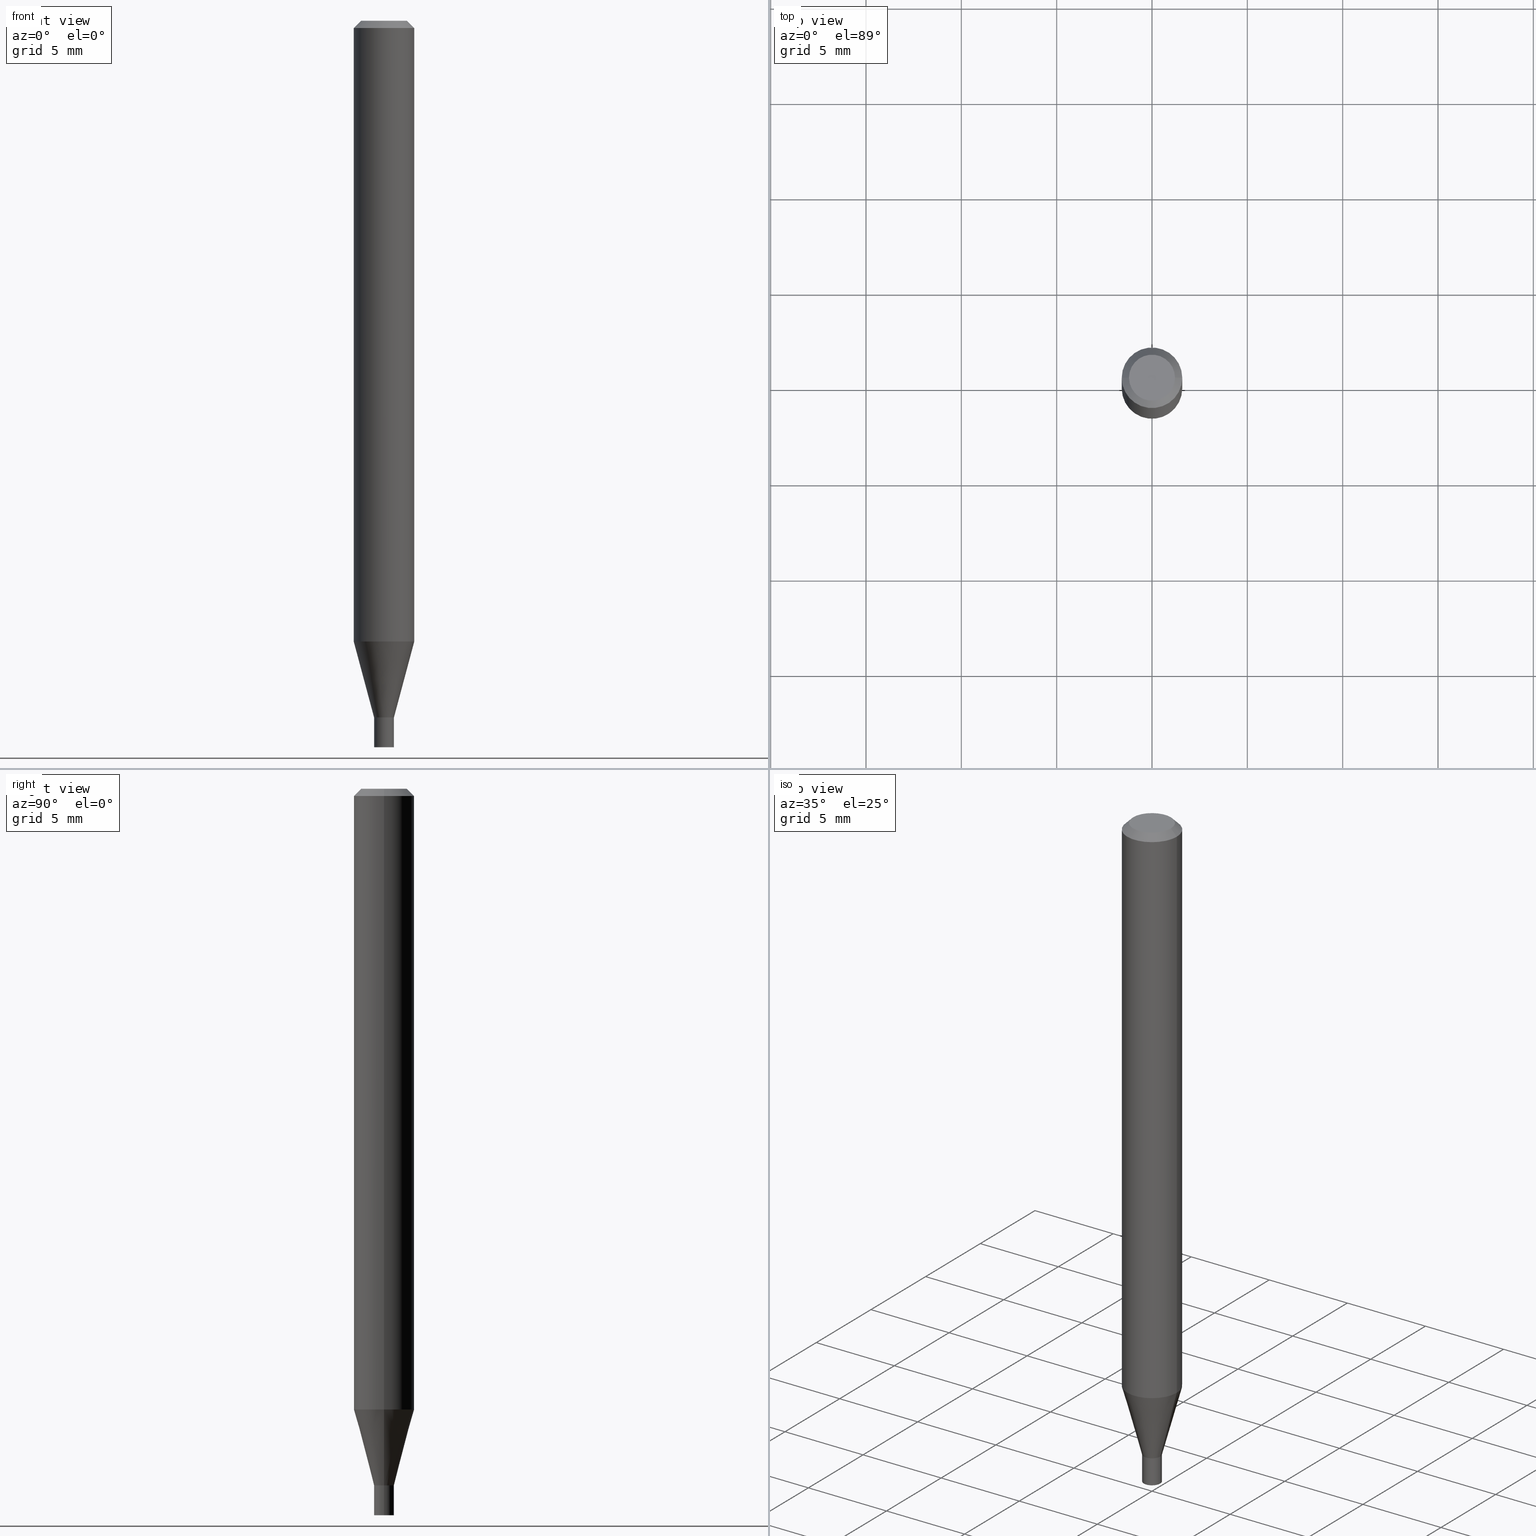
[diagram: canonical four-view strip — front | top / right | iso, engineering-drawing reading convention]
A machine part, canonical four-view strip (front | top / right | iso — engineering-drawing reading convention). The complete STEP part file that produces these views, byte-faithful:
ISO-10303-21;
HEADER;
FILE_DESCRIPTION (( 'STEP AP203' ),
    '1' );
FILE_NAME ('04076.STEP',
    '2024-03-14T16:57:18',
    ( '' ),
    ( '' ),
    'SwSTEP 2.0',
    'SolidWorks 2023',
    '' );
FILE_SCHEMA (( 'CONFIG_CONTROL_DESIGN' ));
ENDSEC;

DATA;
#1 = DIRECTION ( 'NONE',  ( 0.000000000000000000, 0.000000000000000000, 1.000000000000000000 ) ) ;
#2 = CYLINDRICAL_SURFACE ( 'NONE', #452, 0.02049999999999965045 ) ;
#3 = CARTESIAN_POINT ( 'NONE',  ( -3.223020679335594837E-45, 4.601619341103081537E-31, 1.317956160873471783E-16 ) ) ;
#4 = CYLINDRICAL_SURFACE ( 'NONE', #394, 0.02050000000000000086 ) ;
#5 = EDGE_CURVE ( 'NONE', #164, #210, #285, .T. ) ;
#6 = DIRECTION ( 'NONE',  ( 1.000000000000000000, -6.982962677686266711E-15, 4.876176775795935793E-29 ) ) ;
#7 = CARTESIAN_POINT ( 'NONE',  ( 0.06250000000000000000, -4.888073874380388472E-16, -0.01499999999999999944 ) ) ;
#8 = CARTESIAN_POINT ( 'NONE',  ( -0.02049999999999965045, -4.876834645095047443E-15, -1.438500000000000334 ) ) ;
#9 = AXIS2_PLACEMENT_3D ( 'NONE', #202, #138, #240 ) ;
#10 = EDGE_CURVE ( 'NONE', #197, #375, #59, .T. ) ;
#11 = SECURITY_CLASSIFICATION ( '', '', #117 ) ;
#12 = DIRECTION ( 'NONE',  ( -1.000000000000000000, 6.982962677686265922E-15, -4.876176775795935793E-29 ) ) ;
#13 = CARTESIAN_POINT ( 'NONE',  ( 0.000000000000000000, 0.000000000000000000, 0.000000000000000000 ) ) ;
#14 = VECTOR ( 'NONE', #216, 39.37007874015748143 ) ;
#15 = DIRECTION ( 'NONE',  ( 0.7071067811865444641, -7.319954787623245001E-15, -0.7071067811865505703 ) ) ;
#16 = DIRECTION ( 'NONE',  ( 1.000000000000000000, -6.982962677686267499E-15, 4.876176775795935232E-29 ) ) ;
#17 = ORIENTED_EDGE ( 'NONE', *, *, #325, .F. ) ;
#18 = VERTEX_POINT ( 'NONE', #46 ) ;
#19 = AXIS2_PLACEMENT_3D ( 'NONE', #243, #343, #238 ) ;
#20 = ORIENTED_EDGE ( 'NONE', *, *, #409, .F. ) ;
#21 = EDGE_CURVE ( 'NONE', #102, #25, #95, .T. ) ;
#22 = PLANE ( 'NONE',  #19 ) ;
#23 = ORIENTED_EDGE ( 'NONE', *, *, #368, .F. ) ;
#24 = CALENDAR_DATE ( 2024, 14, 3 ) ;
#25 = VERTEX_POINT ( 'NONE', #353 ) ;
#26 = EDGE_CURVE ( 'NONE', #91, #418, #356, .T. ) ;
#27 = EDGE_CURVE ( 'NONE', #45, #107, #111, .T. ) ;
#28 = FACE_OUTER_BOUND ( 'NONE', #337, .T. ) ;
#29 = EDGE_LOOP ( 'NONE', ( #313, #372, #421, #183 ) ) ;
#30 = PERSON_AND_ORGANIZATION ( #155, #385 ) ;
#31 = CARTESIAN_POINT ( 'NONE',  ( 3.134489096710992229E-29, -4.475219704415731184E-15, -1.281753866082106397 ) ) ;
#32 = MECHANICAL_CONTEXT ( 'NONE', #54, 'mechanical' ) ;
#33 = APPROVAL_STATUS ( 'not_yet_approved' ) ;
#34 = CARTESIAN_POINT ( 'NONE',  ( 3.517806877697320021E-29, -5.022495905925865349E-15, -1.438500000000000334 ) ) ;
#35 = AXIS2_PLACEMENT_3D ( 'NONE', #125, #441, #118 ) ;
#36 = AXIS2_PLACEMENT_3D ( 'NONE', #369, #266, #300 ) ;
#37 = APPROVAL_PERSON_ORGANIZATION ( #322, #412, #152 ) ;
#38 = EDGE_CURVE ( 'NONE', #107, #278, #232, .T. ) ;
#39 = CARTESIAN_POINT ( 'NONE',  ( -0.02049999999999965045, -4.875088904425625939E-15, -1.438000000000000389 ) ) ;
#40 = DIRECTION ( 'NONE',  ( 1.000000000000000000, -6.982962677686284065E-15, 0.000000000000000000 ) ) ;
#41 = DIRECTION ( 'NONE',  ( 1.000000000000000000, -6.982962677686266711E-15, 4.876176775795935793E-29 ) ) ;
#42 = CYLINDRICAL_SURFACE ( 'NONE', #136, 0.06250000000000000000 ) ;
#43 = CC_DESIGN_PERSON_AND_ORGANIZATION_ASSIGNMENT ( #114, #185, ( #191 ) ) ;
#44 = DIRECTION ( 'NONE',  ( 1.000000000000000000, -6.982962677686266711E-15, 0.000000000000000000 ) ) ;
#45 = VERTEX_POINT ( 'NONE', #426 ) ;
#46 = CARTESIAN_POINT ( 'NONE',  ( -0.06250000000000000000, -1.819706752399126713E-15, -0.01499999999999999944 ) ) ;
#47 = LINE ( 'NONE', #8, #190 ) ;
#48 = AXIS2_PLACEMENT_3D ( 'NONE', #83, #261, #194 ) ;
#49 = CARTESIAN_POINT ( 'NONE',  ( 3.516584143294227220E-29, -5.020750165256443846E-15, -1.438000000000000389 ) ) ;
#50 = ORIENTED_EDGE ( 'NONE', *, *, #81, .F. ) ;
#51 = DIRECTION ( 'NONE',  ( 1.000000000000000000, -6.982962677686286432E-15, 0.000000000000000000 ) ) ;
#52 = DIMENSIONAL_EXPONENTS ( 1.000000000000000000, 0.000000000000000000, 0.000000000000000000, 0.000000000000000000, 0.000000000000000000, 0.000000000000000000, 0.000000000000000000 ) ;
#53 = EDGE_LOOP ( 'NONE', ( #63, #423, #56, #275 ) ) ;
#54 = APPLICATION_CONTEXT ( 'configuration controlled 3d designs of mechanical parts and assemblies' ) ;
#55 = PLANE ( 'NONE',  #161 ) ;
#56 = ORIENTED_EDGE ( 'NONE', *, *, #154, .F. ) ;
#57 = DIRECTION ( 'NONE',  ( -1.000000000000000000, 6.982962677686266711E-15, 0.000000000000000000 ) ) ;
#58 = VERTEX_POINT ( 'NONE', #362 ) ;
#59 = CIRCLE ( 'NONE', #458, 0.02050000000000000086 ) ;
#60 = CONICAL_SURFACE ( 'NONE', #323, 0.02000000000000000042, 0.7853981633974739252 ) ;
#61 = CC_DESIGN_APPROVAL ( #156, ( #11 ) ) ;
#62 = FACE_OUTER_BOUND ( 'NONE', #273, .T. ) ;
#63 = ORIENTED_EDGE ( 'NONE', *, *, #315, .T. ) ;
#64 = APPROVAL_ROLE ( '' ) ;
#65 = DIRECTION ( 'NONE',  ( -2.445468806185136597E-29, 3.491481338843145583E-15, 1.000000000000000000 ) ) ;
#66 = ORIENTED_EDGE ( 'NONE', *, *, #327, .F. ) ;
#67 = PRODUCT_RELATED_PRODUCT_CATEGORY ( 'detail', '', ( #221 ) ) ;
#68 = CARTESIAN_POINT ( 'NONE',  ( -0.02050000000000000086, -4.984197696264471884E-15, -1.500000000000000222 ) ) ;
#69 = PERSON_AND_ORGANIZATION ( #155, #385 ) ;
#70 = EDGE_LOOP ( 'NONE', ( #279, #354 ) ) ;
#71 = CARTESIAN_POINT ( 'NONE',  ( -0.02050000000000000086, -4.984197696264471884E-15, -1.438500000000000334 ) ) ;
#72 = DATE_TIME_ROLE ( 'creation_date' ) ;
#73 = CARTESIAN_POINT ( 'NONE',  ( 3.517806877697320021E-29, -5.022495905925865349E-15, -1.438500000000000334 ) ) ;
#74 = VECTOR ( 'NONE', #200, 39.37007874015748143 ) ;
#75 = PERSON_AND_ORGANIZATION_ROLE ( 'design_supplier' ) ;
#76 = DIRECTION ( 'NONE',  ( 1.000000000000000000, -6.982962677686261977E-15, 0.000000000000000000 ) ) ;
#77 = PERSON_AND_ORGANIZATION ( #155, #385 ) ;
#78 = CARTESIAN_POINT ( 'NONE',  ( 0.04749999999999999362, -4.035134999187576158E-16, 1.317956160873497667E-16 ) ) ;
#79 = VECTOR ( 'NONE', #153, 39.37007874015748143 ) ;
#80 = DIRECTION ( 'NONE',  ( -2.445468806185136597E-29, 3.491481338843145583E-15, 1.000000000000000000 ) ) ;
#81 = EDGE_CURVE ( 'NONE', #349, #164, #130, .T. ) ;
#82 = DIRECTION ( 'NONE',  ( -2.445468806185136597E-29, 3.491481338843145583E-15, 1.000000000000000000 ) ) ;
#83 = CARTESIAN_POINT ( 'NONE',  ( 3.134489096710992229E-29, -4.475219704415731184E-15, -1.281753866082106397 ) ) ;
#84 = DIRECTION ( 'NONE',  ( 1.000000000000000000, -6.982962677686286432E-15, 0.000000000000000000 ) ) ;
#85 = FACE_OUTER_BOUND ( 'NONE', #70, .T. ) ;
#86 = ORIENTED_EDGE ( 'NONE', *, *, #93, .T. ) ;
#87 = DIRECTION ( 'NONE',  ( -2.445468806185136597E-29, 3.491481338843145583E-15, 1.000000000000000000 ) ) ;
#88 = AXIS2_PLACEMENT_3D ( 'NONE', #410, #274, #51 ) ;
#89 =( GEOMETRIC_REPRESENTATION_CONTEXT ( 3 ) GLOBAL_UNCERTAINTY_ASSIGNED_CONTEXT ( ( #359 ) ) GLOBAL_UNIT_ASSIGNED_CONTEXT ( ( #144, #317, #396 ) ) REPRESENTATION_CONTEXT ( 'NONE', 'WORKASPACE' ) );
#90 = LINE ( 'NONE', #189, #79 ) ;
#91 = VERTEX_POINT ( 'NONE', #173 ) ;
#92 = LINE ( 'NONE', #341, #233 ) ;
#93 = EDGE_CURVE ( 'NONE', #25, #107, #387, .T. ) ;
#94 = ADVANCED_FACE ( 'NONE', ( #85 ), #163, .F. ) ;
#95 = CIRCLE ( 'NONE', #321, 0.02000000000000000042 ) ;
#96 = CIRCLE ( 'NONE', #9, 0.02000000000000000042 ) ;
#97 = CARTESIAN_POINT ( 'NONE',  ( 0.000000000000000000, 0.000000000000000000, 0.000000000000000000 ) ) ;
#98 = ORIENTED_EDGE ( 'NONE', *, *, #235, .T. ) ;
#99 = APPLICATION_CONTEXT ( 'configuration controlled 3d designs of mechanical parts and assemblies' ) ;
#100 = DIRECTION ( 'NONE',  ( -1.000000000000000000, 6.982962677686266711E-15, 0.000000000000000000 ) ) ;
#101 = ORIENTED_EDGE ( 'NONE', *, *, #462, .T. ) ;
#102 = VERTEX_POINT ( 'NONE', #193 ) ;
#103 = CARTESIAN_POINT ( 'NONE',  ( 3.517806877697319461E-29, -5.022495905925864560E-15, -1.438499999999999890 ) ) ;
#104 = ADVANCED_FACE ( 'NONE', ( #162 ), #182, .T. ) ;
#105 = VECTOR ( 'NONE', #446, 39.37007874015747433 ) ;
#106 = DIRECTION ( 'NONE',  ( -2.445468806185136597E-29, 3.491481338843145583E-15, 1.000000000000000000 ) ) ;
#107 = VERTEX_POINT ( 'NONE', #39 ) ;
#108 = PERSON_AND_ORGANIZATION_ROLE ( 'creator' ) ;
#109 = ORIENTED_EDGE ( 'NONE', *, *, #10, .F. ) ;
#110 = CYLINDRICAL_SURFACE ( 'NONE', #165, 0.06250000000000000000 ) ;
#111 = LINE ( 'NONE', #246, #314 ) ;
#112 = DIRECTION ( 'NONE',  ( -2.445468806185136597E-29, 3.491481338843145583E-15, 1.000000000000000000 ) ) ;
#113 = CARTESIAN_POINT ( 'NONE',  ( -0.06250000000000000000, 3.840629472727444916E-16, -0.01499999999999999944 ) ) ;
#114 = PERSON_AND_ORGANIZATION ( #155, #385 ) ;
#115 = APPROVAL_STATUS ( 'not_yet_approved' ) ;
#116 = DIRECTION ( 'NONE',  ( -2.445468806185136597E-29, 3.491481338843145583E-15, 1.000000000000000000 ) ) ;
#117 = SECURITY_CLASSIFICATION_LEVEL ( 'unclassified' ) ;
#118 = DIRECTION ( 'NONE',  ( -1.000000000000000000, 6.982962677686265922E-15, -4.876176775795935793E-29 ) ) ;
#119 = CARTESIAN_POINT ( 'NONE',  ( 3.668203209277704895E-29, -5.237222008264718177E-15, -1.500000000000000222 ) ) ;
#120 = CARTESIAN_POINT ( 'NONE',  ( 3.316907271900976096E-16, 0.04749999999999999362, -9.994755555137580731E-17 ) ) ;
#121 = CC_DESIGN_DATE_AND_TIME_ASSIGNMENT ( #391, #72, ( #281 ) ) ;
#122 = ADVANCED_FACE ( 'NONE', ( #436 ), #264, .F. ) ;
#123 = CIRCLE ( 'NONE', #141, 0.02050000000000000086 ) ;
#124 = CYLINDRICAL_SURFACE ( 'NONE', #345, 0.02049999999999965045 ) ;
#125 = CARTESIAN_POINT ( 'NONE',  ( 1.431507348926036478E-16, 0.02049999999999497710, -1.438500000000000334 ) ) ;
#126 = CARTESIAN_POINT ( 'NONE',  ( 0.000000000000000000, 0.000000000000000000, 0.000000000000000000 ) ) ;
#127 = LINE ( 'NONE', #295, #255 ) ;
#128 = CARTESIAN_POINT ( 'NONE',  ( 0.06250000000000000000, -4.911654871771122854E-15, -1.281753866082106397 ) ) ;
#129 = VERTEX_POINT ( 'NONE', #228 ) ;
#130 = CIRCLE ( 'NONE', #382, 0.06250000000000000000 ) ;
#131 = CARTESIAN_POINT ( 'NONE',  ( -3.223020679335594837E-45, 4.601619341103081537E-31, 1.317956160873471783E-16 ) ) ;
#132 = CARTESIAN_POINT ( 'NONE',  ( 0.02049999999999965045, -5.165646640818431797E-15, -1.438500000000000334 ) ) ;
#133 = CC_DESIGN_PERSON_AND_ORGANIZATION_ASSIGNMENT ( #254, #75, ( #191 ) ) ;
#134 = ORIENTED_EDGE ( 'NONE', *, *, #462, .F. ) ;
#135 = EDGE_CURVE ( 'NONE', #278, #107, #316, .T. ) ;
#136 = AXIS2_PLACEMENT_3D ( 'NONE', #13, #87, #6 ) ;
#137 = ORIENTED_EDGE ( 'NONE', *, *, #21, .F. ) ;
#138 = DIRECTION ( 'NONE',  ( -2.445468806185136597E-29, 3.491481338843145583E-15, 1.000000000000000000 ) ) ;
#139 = ORIENTED_EDGE ( 'NONE', *, *, #179, .T. ) ;
#140 = EDGE_LOOP ( 'NONE', ( #388, #444, #139, #379 ) ) ;
#141 = AXIS2_PLACEMENT_3D ( 'NONE', #119, #363, #76 ) ;
#142 = EDGE_LOOP ( 'NONE', ( #310, #201 ) ) ;
#143 = EDGE_CURVE ( 'NONE', #91, #197, #299, .T. ) ;
#144 =( CONVERSION_BASED_UNIT ( 'INCH', #253 ) LENGTH_UNIT ( ) NAMED_UNIT ( #52 ) );
#145 = COORDINATED_UNIVERSAL_TIME_OFFSET ( 5, 0, .BEHIND. ) ;
#146 = ORIENTED_EDGE ( 'NONE', *, *, #5, .T. ) ;
#147 = DIRECTION ( 'NONE',  ( 1.000000000000000000, -6.982962677686284065E-15, 0.000000000000000000 ) ) ;
#148 = DIRECTION ( 'NONE',  ( -2.445468806185136597E-29, 3.491481338843145583E-15, 1.000000000000000000 ) ) ;
#149 = COORDINATED_UNIVERSAL_TIME_OFFSET ( 5, 0, .BEHIND. ) ;
#150 = AXIS2_PLACEMENT_3D ( 'NONE', #198, #234, #40 ) ;
#151 = AXIS2_PLACEMENT_3D ( 'NONE', #365, #1, #291 ) ;
#152 = APPROVAL_ROLE ( '' ) ;
#153 = DIRECTION ( 'NONE',  ( -2.445468806185136877E-29, 3.491481338843145188E-15, 1.000000000000000000 ) ) ;
#154 = EDGE_CURVE ( 'NONE', #164, #349, #431, .T. ) ;
#155 = PERSON ( 'UNSPECIFIED', 'UNSPECIFIED', 'UNSPECIFIED', ('UNSPECIFIED'), ('UNSPECIFIED'), ('UNSPECIFIED') ) ;
#156 = APPROVAL ( #218, 'UNSPECIFIED' ) ;
#157 = DIRECTION ( 'NONE',  ( -2.445468806185136877E-29, 3.491481338843145188E-15, 1.000000000000000000 ) ) ;
#158 = LINE ( 'NONE', #298, #74 ) ;
#159 = FACE_OUTER_BOUND ( 'NONE', #247, .T. ) ;
#160 = AXIS2_PLACEMENT_3D ( 'NONE', #258, #65, #284 ) ;
#161 = AXIS2_PLACEMENT_3D ( 'NONE', #236, #170, #419 ) ;
#162 = FACE_OUTER_BOUND ( 'NONE', #53, .T. ) ;
#163 = PLANE ( 'NONE',  #35 ) ;
#164 = VERTEX_POINT ( 'NONE', #128 ) ;
#165 = AXIS2_PLACEMENT_3D ( 'NONE', #358, #116, #361 ) ;
#166 = ADVANCED_FACE ( 'NONE', ( #199 ), #2, .F. ) ;
#167 = DIRECTION ( 'NONE',  ( 2.445468806185136597E-29, -3.491481338843145583E-15, -1.000000000000000000 ) ) ;
#168 = ORIENTED_EDGE ( 'NONE', *, *, #205, .T. ) ;
#169 = AXIS2_PLACEMENT_3D ( 'NONE', #49, #301, #326 ) ;
#170 = DIRECTION ( 'NONE',  ( -2.438088387897960049E-29, 3.491481338843145188E-15, 1.000000000000000000 ) ) ;
#171 = EDGE_LOOP ( 'NONE', ( #383, #342, #212, #50 ) ) ;
#172 = ADVANCED_BREP_SHAPE_REPRESENTATION ( '04076', ( #447, #293, #151 ), #89 ) ;
#173 = CARTESIAN_POINT ( 'NONE',  ( 0.02050000000000000086, -5.380372743157286991E-15, -1.500000000000000222 ) ) ;
#174 = ADVANCED_FACE ( 'NONE', ( #402 ), #4, .T. ) ;
#175 = ORIENTED_EDGE ( 'NONE', *, *, #205, .F. ) ;
#176 = PERSON_AND_ORGANIZATION ( #155, #385 ) ;
#177 = CARTESIAN_POINT ( 'NONE',  ( -0.02000000000000000042, -4.880387358773844397E-15, -1.438499999999999890 ) ) ;
#178 = EDGE_LOOP ( 'NONE', ( #420, #101, #208, #456 ) ) ;
#179 = EDGE_CURVE ( 'NONE', #102, #278, #127, .T. ) ;
#180 = DIRECTION ( 'NONE',  ( -0.7071067811865444641, 2.468850131082224717E-15, -0.7071067811865505703 ) ) ;
#181 = COORDINATED_UNIVERSAL_TIME_OFFSET ( 5, 0, .BEHIND. ) ;
#182 = CONICAL_SURFACE ( 'NONE', #374, 0.02049999999999965045, 0.2617993877991500740 ) ;
#183 = ORIENTED_EDGE ( 'NONE', *, *, #135, .T. ) ;
#184 = CARTESIAN_POINT ( 'NONE',  ( -0.06250000000000000000, 4.440892098500626162E-16, -3.074334431409316114E-30 ) ) ;
#185 = PERSON_AND_ORGANIZATION_ROLE ( 'creator' ) ;
#186 = DIRECTION ( 'NONE',  ( -2.445468806185136597E-29, 3.491481338843145583E-15, 1.000000000000000000 ) ) ;
#187 = PERSON_AND_ORGANIZATION ( #155, #385 ) ;
#188 = APPROVAL_DATE_TIME ( #457, #156 ) ;
#189 = CARTESIAN_POINT ( 'NONE',  ( -0.02050000000000000086, 1.456612608308205442E-16, -1.008381693502255795E-30 ) ) ;
#190 = VECTOR ( 'NONE', #336, 39.37007874015747433 ) ;
#191 = PRODUCT_DEFINITION_FORMATION_WITH_SPECIFIED_SOURCE ( 'ANY', '', #221, .NOT_KNOWN. ) ;
#192 =( LENGTH_UNIT ( ) NAMED_UNIT ( * ) SI_UNIT ( $, .METRE. ) );
#193 = CARTESIAN_POINT ( 'NONE',  ( 0.02000000000000000042, -5.162155159479590368E-15, -1.438499999999999890 ) ) ;
#194 = DIRECTION ( 'NONE',  ( 1.000000000000000000, -6.982962677686262766E-15, 0.000000000000000000 ) ) ;
#195 = FACE_OUTER_BOUND ( 'NONE', #140, .T. ) ;
#196 = CIRCLE ( 'NONE', #209, 0.06250000000000000000 ) ;
#197 = VERTEX_POINT ( 'NONE', #265 ) ;
#198 = CARTESIAN_POINT ( 'NONE',  ( 3.517806877697319461E-29, -5.022495905925864560E-15, -1.438499999999999890 ) ) ;
#199 = FACE_OUTER_BOUND ( 'NONE', #455, .T. ) ;
#200 = DIRECTION ( 'NONE',  ( -2.445468806185136877E-29, 3.491481338843145188E-15, 1.000000000000000000 ) ) ;
#201 = ORIENTED_EDGE ( 'NONE', *, *, #400, .T. ) ;
#202 = CARTESIAN_POINT ( 'NONE',  ( 3.517806877697319461E-29, -5.022495905925864560E-15, -1.438499999999999890 ) ) ;
#203 = CONICAL_SURFACE ( 'NONE', #338, 0.06250000000000000000, 0.7853981633974439491 ) ;
#204 = CC_DESIGN_DATE_AND_TIME_ASSIGNMENT ( #466, #257, ( #11 ) ) ;
#205 = EDGE_CURVE ( 'NONE', #210, #18, #307, .T. ) ;
#206 = FACE_OUTER_BOUND ( 'NONE', #450, .T. ) ;
#207 = ORIENTED_EDGE ( 'NONE', *, *, #26, .F. ) ;
#208 = ORIENTED_EDGE ( 'NONE', *, *, #143, .T. ) ;
#209 = AXIS2_PLACEMENT_3D ( 'NONE', #429, #435, #352 ) ;
#210 = VERTEX_POINT ( 'NONE', #7 ) ;
#211 = COORDINATED_UNIVERSAL_TIME_OFFSET ( 5, 0, .BEHIND. ) ;
#212 = ORIENTED_EDGE ( 'NONE', *, *, #305, .T. ) ;
#213 = PERSON_AND_ORGANIZATION_ROLE ( 'classification_officer' ) ;
#214 = VERTEX_POINT ( 'NONE', #78 ) ;
#215 = APPROVAL ( #33, 'UNSPECIFIED' ) ;
#216 = DIRECTION ( 'NONE',  ( -2.445468806185136877E-29, 3.491481338843145188E-15, 1.000000000000000000 ) ) ;
#217 = CLOSED_SHELL ( 'NONE', ( #166, #226, #262, #386, #104, #333, #340, #237, #122, #250, #347, #367 ) ) ;
#218 = APPROVAL_STATUS ( 'not_yet_approved' ) ;
#219 = DIRECTION ( 'NONE',  ( -2.445468806185136877E-29, 3.491481338843145188E-15, 1.000000000000000000 ) ) ;
#220 = CARTESIAN_POINT ( 'NONE',  ( 3.516584143294227220E-29, -5.020750165256443846E-15, -1.438000000000000389 ) ) ;
#221 = PRODUCT ( '04076', '04076', '', ( #32 ) ) ;
#222 = LINE ( 'NONE', #184, #14 ) ;
#223 = CALENDAR_DATE ( 2024, 14, 3 ) ;
#224 = DIRECTION ( 'NONE',  ( 1.000000000000000000, -6.982962677686262766E-15, 0.000000000000000000 ) ) ;
#225 = DIRECTION ( 'NONE',  ( -2.445468806185136597E-29, 3.491481338843145583E-15, 1.000000000000000000 ) ) ;
#226 = ADVANCED_FACE ( 'NONE', ( #159 ), #60, .T. ) ;
#227 = CONICAL_SURFACE ( 'NONE', #150, 0.02000000000000000042, 0.7853981633974739252 ) ;
#228 = CARTESIAN_POINT ( 'NONE',  ( -0.04749999999999999362, 3.578768372314212971E-16, 1.317956160873447624E-16 ) ) ;
#229 = DIRECTION ( 'NONE',  ( 2.438088387897960049E-29, -3.491481338843145188E-15, -1.000000000000000000 ) ) ;
#230 = EDGE_LOOP ( 'NONE', ( #20, #351, #146, #23 ) ) ;
#231 = CARTESIAN_POINT ( 'NONE',  ( 3.668203209277705088E-31, -5.237222008264718399E-17, -0.01499999999999999944 ) ) ;
#232 = CIRCLE ( 'NONE', #405, 0.02049999999999965045 ) ;
#233 = VECTOR ( 'NONE', #15, 39.37007874015748143 ) ;
#234 = DIRECTION ( 'NONE',  ( -2.445468806185136597E-29, 3.491481338843145583E-15, 1.000000000000000000 ) ) ;
#235 = EDGE_CURVE ( 'NONE', #418, #375, #90, .T. ) ;
#236 = CARTESIAN_POINT ( 'NONE',  ( 3.576687321579069994E-29, -5.368277968210015545E-15, -1.500000000000000222 ) ) ;
#237 = ADVANCED_FACE ( 'NONE', ( #290 ), #332, .T. ) ;
#238 = DIRECTION ( 'NONE',  ( 1.000000000000000000, -6.982962677686265922E-15, 4.876176775795935793E-29 ) ) ;
#239 = CIRCLE ( 'NONE', #296, 0.04749999999999999362 ) ;
#240 = DIRECTION ( 'NONE',  ( 1.000000000000000000, -6.982962677686284065E-15, 0.000000000000000000 ) ) ;
#241 = ORIENTED_EDGE ( 'NONE', *, *, #135, .F. ) ;
#242 = ORIENTED_EDGE ( 'NONE', *, *, #259, .T. ) ;
#243 = CARTESIAN_POINT ( 'NONE',  ( 3.517806877697319461E-29, -5.022495905925864560E-15, -1.438499999999999890 ) ) ;
#244 = ORIENTED_EDGE ( 'NONE', *, *, #143, .F. ) ;
#245 = VECTOR ( 'NONE', #370, 39.37007874015748143 ) ;
#246 = CARTESIAN_POINT ( 'NONE',  ( -0.02049999999999965045, 1.456612608308180544E-16, -1.008381693502238454E-30 ) ) ;
#247 = EDGE_LOOP ( 'NONE', ( #248, #86, #241, #282 ) ) ;
#248 = ORIENTED_EDGE ( 'NONE', *, *, #21, .T. ) ;
#249 = CC_DESIGN_PERSON_AND_ORGANIZATION_ASSIGNMENT ( #77, #108, ( #281 ) ) ;
#250 = ADVANCED_FACE ( 'NONE', ( #62 ), #22, .F. ) ;
#251 = CARTESIAN_POINT ( 'NONE',  ( 3.517806877697320021E-29, -5.022495905925865349E-15, -1.438500000000000334 ) ) ;
#252 = DIRECTION ( 'NONE',  ( 1.000000000000000000, -6.982962677686261977E-15, 0.000000000000000000 ) ) ;
#253 = LENGTH_MEASURE_WITH_UNIT ( LENGTH_MEASURE( 0.02539999999999999897 ), #192 );
#254 = PERSON_AND_ORGANIZATION ( #155, #385 ) ;
#255 = VECTOR ( 'NONE', #329, 39.37007874015748143 ) ;
#256 = DATE_AND_TIME ( #260, #339 ) ;
#257 = DATE_TIME_ROLE ( 'classification_date' ) ;
#258 = CARTESIAN_POINT ( 'NONE',  ( 3.668203209277704895E-29, -5.237222008264718177E-15, -1.500000000000000222 ) ) ;
#259 = EDGE_CURVE ( 'NONE', #214, #210, #92, .T. ) ;
#260 = CALENDAR_DATE ( 2024, 14, 3 ) ;
#261 = DIRECTION ( 'NONE',  ( -2.445468806185136597E-29, 3.491481338843145583E-15, 1.000000000000000000 ) ) ;
#262 = ADVANCED_FACE ( 'NONE', ( #380 ), #203, .T. ) ;
#263 = CARTESIAN_POINT ( 'NONE',  ( 3.517806877697320021E-29, -5.022495905925865349E-15, -1.438500000000000334 ) ) ;
#264 = PLANE ( 'NONE',  #364 ) ;
#265 = CARTESIAN_POINT ( 'NONE',  ( 0.02050000000000000086, -5.165646640818434164E-15, -1.438500000000000334 ) ) ;
#266 = DIRECTION ( 'NONE',  ( -2.445468806185136597E-29, 3.491481338843145583E-15, 1.000000000000000000 ) ) ;
#267 = CARTESIAN_POINT ( 'NONE',  ( 0.000000000000000000, 0.000000000000000000, 0.000000000000000000 ) ) ;
#268 = AXIS2_PLACEMENT_3D ( 'NONE', #3, #225, #289 ) ;
#269 = ORIENTED_EDGE ( 'NONE', *, *, #409, .T. ) ;
#270 = ADVANCED_FACE ( 'NONE', ( #303 ), #55, .F. ) ;
#271 = CARTESIAN_POINT ( 'NONE',  ( 0.02049999999999965045, -5.163900900149010294E-15, -1.438000000000000389 ) ) ;
#272 = DIRECTION ( 'NONE',  ( -2.445468806185136597E-29, 3.491481338843145583E-15, 1.000000000000000000 ) ) ;
#273 = EDGE_LOOP ( 'NONE', ( #137, #17 ) ) ;
#274 = DIRECTION ( 'NONE',  ( -2.445468806185136597E-29, 3.491481338843145583E-15, 1.000000000000000000 ) ) ;
#275 = ORIENTED_EDGE ( 'NONE', *, *, #305, .F. ) ;
#276 = CIRCLE ( 'NONE', #346, 0.02049999999999965045 ) ;
#277 = ORIENTED_EDGE ( 'NONE', *, *, #368, .T. ) ;
#278 = VERTEX_POINT ( 'NONE', #271 ) ;
#279 = ORIENTED_EDGE ( 'NONE', *, *, #10, .T. ) ;
#280 = VECTOR ( 'NONE', #180, 39.37007874015748143 ) ;
#281 = PRODUCT_DEFINITION ( 'UNKNOWN', '', #191, #350 ) ;
#282 = ORIENTED_EDGE ( 'NONE', *, *, #179, .F. ) ;
#283 = APPROVAL_DATE_TIME ( #430, #215 ) ;
#284 = DIRECTION ( 'NONE',  ( 1.000000000000000000, -6.982962677686261977E-15, 0.000000000000000000 ) ) ;
#285 = LINE ( 'NONE', #392, #330 ) ;
#286 = COORDINATED_UNIVERSAL_TIME_OFFSET ( 5, 0, .BEHIND. ) ;
#287 = DIRECTION ( 'NONE',  ( 1.000000000000000000, -6.982962677686261977E-15, 0.000000000000000000 ) ) ;
#288 = CALENDAR_DATE ( 2024, 14, 3 ) ;
#289 = DIRECTION ( 'NONE',  ( 1.000000000000000000, -6.982962677686267499E-15, 4.884662768193073002E-29 ) ) ;
#290 = FACE_OUTER_BOUND ( 'NONE', #459, .T. ) ;
#291 = DIRECTION ( 'NONE',  ( 1.000000000000000000, 0.000000000000000000, 0.000000000000000000 ) ) ;
#292 = DIRECTION ( 'NONE',  ( 1.000000000000000000, -6.982962677686286432E-15, 0.000000000000000000 ) ) ;
#293 = MANIFOLD_SOLID_BREP ( 'Body-Move/Copy2[2]', #217 ) ;
#294 = CARTESIAN_POINT ( 'NONE',  ( -0.06250000000000000000, -4.031130494565667779E-15, -1.281753866082106397 ) ) ;
#295 = CARTESIAN_POINT ( 'NONE',  ( 0.02000000000000000042, -5.162155159479590368E-15, -1.438499999999999890 ) ) ;
#296 = AXIS2_PLACEMENT_3D ( 'NONE', #131, #272, #451 ) ;
#297 = ADVANCED_FACE ( 'NONE', ( #206 ), #304, .T. ) ;
#298 = CARTESIAN_POINT ( 'NONE',  ( 0.02049999999999965045, -1.431507348925660290E-16, 9.996162390381497557E-31 ) ) ;
#299 = LINE ( 'NONE', #443, #376 ) ;
#300 = DIRECTION ( 'NONE',  ( 1.000000000000000000, -6.982962677686286432E-15, 0.000000000000000000 ) ) ;
#301 = DIRECTION ( 'NONE',  ( -2.445468806185136597E-29, 3.491481338843145583E-15, 1.000000000000000000 ) ) ;
#302 = CIRCLE ( 'NONE', #460, 0.02050000000000000086 ) ;
#303 = FACE_OUTER_BOUND ( 'NONE', #408, .T. ) ;
#304 = CYLINDRICAL_SURFACE ( 'NONE', #384, 0.02050000000000000086 ) ;
#305 = EDGE_CURVE ( 'NONE', #58, #164, #309, .T. ) ;
#306 = EDGE_LOOP ( 'NONE', ( #344, #242, #168, #381 ) ) ;
#307 = CIRCLE ( 'NONE', #357, 0.06250000000000000000 ) ;
#308 = CC_DESIGN_APPROVAL ( #412, ( #281 ) ) ;
#309 = LINE ( 'NONE', #132, #105 ) ;
#310 = ORIENTED_EDGE ( 'NONE', *, *, #312, .T. ) ;
#311 = ORIENTED_EDGE ( 'NONE', *, *, #5, .F. ) ;
#312 = EDGE_CURVE ( 'NONE', #129, #214, #239, .T. ) ;
#313 = ORIENTED_EDGE ( 'NONE', *, *, #27, .F. ) ;
#314 = VECTOR ( 'NONE', #219, 39.37007874015748143 ) ;
#315 = EDGE_CURVE ( 'NONE', #58, #45, #406, .T. ) ;
#316 = CIRCLE ( 'NONE', #169, 0.02049999999999965045 ) ;
#317 =( NAMED_UNIT ( * ) PLANE_ANGLE_UNIT ( ) SI_UNIT ( $, .RADIAN. ) );
#318 = CALENDAR_DATE ( 2024, 14, 3 ) ;
#319 = DIRECTION ( 'NONE',  ( -2.445468806185136597E-29, 3.491481338843145583E-15, 1.000000000000000000 ) ) ;
#320 = ORIENTED_EDGE ( 'NONE', *, *, #27, .T. ) ;
#321 = AXIS2_PLACEMENT_3D ( 'NONE', #103, #106, #147 ) ;
#322 = PERSON_AND_ORGANIZATION ( #155, #385 ) ;
#323 = AXIS2_PLACEMENT_3D ( 'NONE', #331, #373, #407 ) ;
#324 = APPROVAL_PERSON_ORGANIZATION ( #69, #215, #64 ) ;
#325 = EDGE_CURVE ( 'NONE', #25, #102, #96, .T. ) ;
#326 = DIRECTION ( 'NONE',  ( 1.000000000000000000, -6.982962677686286432E-15, 0.000000000000000000 ) ) ;
#327 = EDGE_CURVE ( 'NONE', #45, #58, #276, .T. ) ;
#328 = EDGE_CURVE ( 'NONE', #45, #349, #47, .T. ) ;
#329 = DIRECTION ( 'NONE',  ( 0.7071067811865656694, -2.468850131082446387E-15, 0.7071067811865294761 ) ) ;
#330 = VECTOR ( 'NONE', #427, 39.37007874015748143 ) ;
#331 = CARTESIAN_POINT ( 'NONE',  ( 3.517806877697319461E-29, -5.022495905925864560E-15, -1.438499999999999890 ) ) ;
#332 = CONICAL_SURFACE ( 'NONE', #438, 0.06250000000000000000, 0.7853981633974439491 ) ;
#333 = ADVANCED_FACE ( 'NONE', ( #440 ), #414, .T. ) ;
#334 = DIRECTION ( 'NONE',  ( -2.445468806185136597E-29, 3.491481338843145583E-15, 1.000000000000000000 ) ) ;
#335 = DIRECTION ( 'NONE',  ( 1.000000000000000000, -6.982962677686267499E-15, 4.876176775795935232E-29 ) ) ;
#336 = DIRECTION ( 'NONE',  ( -0.2588190451025213501, 5.211531920934551042E-15, 0.9659258262890682012 ) ) ;
#337 = EDGE_LOOP ( 'NONE', ( #390, #269, #175, #311 ) ) ;
#338 = AXIS2_PLACEMENT_3D ( 'NONE', #411, #167, #57 ) ;
#339 = LOCAL_TIME ( 12, 57, 18.00000000000000000, #286 ) ;
#340 = ADVANCED_FACE ( 'NONE', ( #403 ), #42, .T. ) ;
#341 = CARTESIAN_POINT ( 'NONE',  ( 0.06250000000000000000, -4.811533449433679005E-16, -0.01499999999999999944 ) ) ;
#342 = ORIENTED_EDGE ( 'NONE', *, *, #327, .T. ) ;
#343 = DIRECTION ( 'NONE',  ( -2.438088387897960049E-29, 3.491481338843145188E-15, 1.000000000000000000 ) ) ;
#344 = ORIENTED_EDGE ( 'NONE', *, *, #400, .F. ) ;
#345 = AXIS2_PLACEMENT_3D ( 'NONE', #126, #334, #389 ) ;
#346 = AXIS2_PLACEMENT_3D ( 'NONE', #263, #82, #84 ) ;
#347 = ADVANCED_FACE ( 'NONE', ( #195 ), #227, .T. ) ;
#348 = DIRECTION ( 'NONE',  ( 2.445468806185136597E-29, -3.491481338843145583E-15, -1.000000000000000000 ) ) ;
#349 = VERTEX_POINT ( 'NONE', #294 ) ;
#350 = DESIGN_CONTEXT ( 'detailed design', #99, 'design' ) ;
#351 = ORIENTED_EDGE ( 'NONE', *, *, #81, .T. ) ;
#352 = DIRECTION ( 'NONE',  ( 1.000000000000000000, -6.982962677686266711E-15, 0.000000000000000000 ) ) ;
#353 = CARTESIAN_POINT ( 'NONE',  ( -0.02000000000000000042, -4.877738131599734774E-15, -1.438499999999999890 ) ) ;
#354 = ORIENTED_EDGE ( 'NONE', *, *, #378, .T. ) ;
#355 = EDGE_CURVE ( 'NONE', #58, #278, #158, .T. ) ;
#356 = CIRCLE ( 'NONE', #160, 0.02050000000000000086 ) ;
#357 = AXIS2_PLACEMENT_3D ( 'NONE', #231, #371, #44 ) ;
#358 = CARTESIAN_POINT ( 'NONE',  ( 0.000000000000000000, 0.000000000000000000, 0.000000000000000000 ) ) ;
#359 = UNCERTAINTY_MEASURE_WITH_UNIT (LENGTH_MEASURE( 1.000000000000000082E-05 ), #144, 'distance_accuracy_value', 'NONE');
#360 = DIRECTION ( 'NONE',  ( 1.000000000000000000, -6.982962677686286432E-15, 0.000000000000000000 ) ) ;
#361 = DIRECTION ( 'NONE',  ( 1.000000000000000000, -6.982962677686266711E-15, 4.876176775795935793E-29 ) ) ;
#362 = CARTESIAN_POINT ( 'NONE',  ( 0.02049999999999965045, -5.165646640818431797E-15, -1.438500000000000334 ) ) ;
#363 = DIRECTION ( 'NONE',  ( -2.445468806185136597E-29, 3.491481338843145583E-15, 1.000000000000000000 ) ) ;
#364 = AXIS2_PLACEMENT_3D ( 'NONE', #120, #229, #12 ) ;
#365 = CARTESIAN_POINT ( 'NONE',  ( 0.000000000000000000, 0.000000000000000000, 0.000000000000000000 ) ) ;
#366 = CIRCLE ( 'NONE', #268, 0.04749999999999999362 ) ;
#367 = ADVANCED_FACE ( 'NONE', ( #437 ), #124, .F. ) ;
#368 = EDGE_CURVE ( 'NONE', #18, #210, #196, .T. ) ;
#369 = CARTESIAN_POINT ( 'NONE',  ( 3.517806877697320021E-29, -5.022495905925865349E-15, -1.438500000000000334 ) ) ;
#370 = DIRECTION ( 'NONE',  ( -0.7071067811865656694, 7.493145998870420424E-15, 0.7071067811865294761 ) ) ;
#371 = DIRECTION ( 'NONE',  ( -2.445468806185136597E-29, 3.491481338843145583E-15, 1.000000000000000000 ) ) ;
#372 = ORIENTED_EDGE ( 'NONE', *, *, #315, .F. ) ;
#373 = DIRECTION ( 'NONE',  ( -2.445468806185136597E-29, 3.491481338843145583E-15, 1.000000000000000000 ) ) ;
#374 = AXIS2_PLACEMENT_3D ( 'NONE', #34, #439, #292 ) ;
#375 = VERTEX_POINT ( 'NONE', #71 ) ;
#376 = VECTOR ( 'NONE', #157, 39.37007874015748143 ) ;
#377 = ORIENTED_EDGE ( 'NONE', *, *, #38, .T. ) ;
#378 = EDGE_CURVE ( 'NONE', #375, #197, #302, .T. ) ;
#379 = ORIENTED_EDGE ( 'NONE', *, *, #38, .F. ) ;
#380 = FACE_OUTER_BOUND ( 'NONE', #306, .T. ) ;
#381 = ORIENTED_EDGE ( 'NONE', *, *, #413, .F. ) ;
#382 = AXIS2_PLACEMENT_3D ( 'NONE', #31, #186, #224 ) ;
#383 = ORIENTED_EDGE ( 'NONE', *, *, #328, .F. ) ;
#384 = AXIS2_PLACEMENT_3D ( 'NONE', #97, #449, #16 ) ;
#385 = ORGANIZATION ( 'UNSPECIFIED', 'UNSPECIFIED', '' ) ;
#386 = ADVANCED_FACE ( 'NONE', ( #28 ), #110, .T. ) ;
#387 = LINE ( 'NONE', #177, #245 ) ;
#388 = ORIENTED_EDGE ( 'NONE', *, *, #93, .F. ) ;
#389 = DIRECTION ( 'NONE',  ( 1.000000000000000000, -6.982962677686266711E-15, 4.876176775795935793E-29 ) ) ;
#390 = ORIENTED_EDGE ( 'NONE', *, *, #154, .T. ) ;
#391 = DATE_AND_TIME ( #318, #415 ) ;
#392 = CARTESIAN_POINT ( 'NONE',  ( 0.06250000000000000000, -4.364351673553916694E-16, 3.047610484872459871E-30 ) ) ;
#393 = CLOSED_SHELL ( 'NONE', ( #297, #270, #174, #94 ) ) ;
#394 = AXIS2_PLACEMENT_3D ( 'NONE', #267, #398, #335 ) ;
#395 = LOCAL_TIME ( 12, 57, 18.00000000000000000, #211 ) ;
#396 =( NAMED_UNIT ( * ) SI_UNIT ( $, .STERADIAN. ) SOLID_ANGLE_UNIT ( ) );
#397 = APPROVAL_DATE_TIME ( #256, #412 ) ;
#398 = DIRECTION ( 'NONE',  ( -2.445468806185136597E-29, 3.491481338843145583E-15, 1.000000000000000000 ) ) ;
#399 = LOCAL_TIME ( 12, 57, 18.00000000000000000, #149 ) ;
#400 = EDGE_CURVE ( 'NONE', #214, #129, #366, .T. ) ;
#401 = CARTESIAN_POINT ( 'NONE',  ( 0.000000000000000000, 0.000000000000000000, 0.000000000000000000 ) ) ;
#402 = FACE_OUTER_BOUND ( 'NONE', #178, .T. ) ;
#403 = FACE_OUTER_BOUND ( 'NONE', #230, .T. ) ;
#404 = ORIENTED_EDGE ( 'NONE', *, *, #312, .F. ) ;
#405 = AXIS2_PLACEMENT_3D ( 'NONE', #220, #319, #360 ) ;
#406 = CIRCLE ( 'NONE', #88, 0.02049999999999965045 ) ;
#407 = DIRECTION ( 'NONE',  ( 1.000000000000000000, -6.982962677686284065E-15, 0.000000000000000000 ) ) ;
#408 = EDGE_LOOP ( 'NONE', ( #207, #134 ) ) ;
#409 = EDGE_CURVE ( 'NONE', #349, #18, #222, .T. ) ;
#410 = CARTESIAN_POINT ( 'NONE',  ( 3.517806877697320021E-29, -5.022495905925865349E-15, -1.438500000000000334 ) ) ;
#411 = CARTESIAN_POINT ( 'NONE',  ( 3.668203209277705088E-31, -5.237222008264718399E-17, -0.01499999999999999944 ) ) ;
#412 = APPROVAL ( #115, 'UNSPECIFIED' ) ;
#413 = EDGE_CURVE ( 'NONE', #129, #18, #433, .T. ) ;
#414 = CONICAL_SURFACE ( 'NONE', #36, 0.02049999999999965045, 0.2617993877991500740 ) ;
#415 = LOCAL_TIME ( 12, 57, 18.00000000000000000, #181 ) ;
#416 = ORIENTED_EDGE ( 'NONE', *, *, #413, .T. ) ;
#417 = CARTESIAN_POINT ( 'NONE',  ( 3.668203209277705088E-31, -5.237222008264718399E-17, -0.01499999999999999944 ) ) ;
#418 = VERTEX_POINT ( 'NONE', #68 ) ;
#419 = DIRECTION ( 'NONE',  ( 1.000000000000000000, -6.982962677686265922E-15, 4.876176775795935793E-29 ) ) ;
#420 = ORIENTED_EDGE ( 'NONE', *, *, #235, .F. ) ;
#421 = ORIENTED_EDGE ( 'NONE', *, *, #355, .T. ) ;
#422 = PRODUCT_DEFINITION_SHAPE ( 'NONE', 'NONE',  #281 ) ;
#423 = ORIENTED_EDGE ( 'NONE', *, *, #328, .T. ) ;
#424 = APPLICATION_PROTOCOL_DEFINITION ( 'international standard', 'config_control_design', 1994, #54 ) ;
#425 = APPROVAL_ROLE ( '' ) ;
#426 = CARTESIAN_POINT ( 'NONE',  ( -0.02049999999999965045, -4.453982569830358005E-15, -1.438500000000000334 ) ) ;
#427 = DIRECTION ( 'NONE',  ( -2.445468806185136877E-29, 3.491481338843145188E-15, 1.000000000000000000 ) ) ;
#428 = CC_DESIGN_PERSON_AND_ORGANIZATION_ASSIGNMENT ( #187, #213, ( #11 ) ) ;
#429 = CARTESIAN_POINT ( 'NONE',  ( 3.668203209277705088E-31, -5.237222008264718399E-17, -0.01499999999999999944 ) ) ;
#430 = DATE_AND_TIME ( #24, #395 ) ;
#431 = CIRCLE ( 'NONE', #48, 0.06250000000000000000 ) ;
#432 = LOCAL_TIME ( 12, 57, 18.00000000000000000, #145 ) ;
#433 = LINE ( 'NONE', #113, #280 ) ;
#434 = SHAPE_DEFINITION_REPRESENTATION ( #422, #172 ) ;
#435 = DIRECTION ( 'NONE',  ( -2.445468806185136597E-29, 3.491481338843145583E-15, 1.000000000000000000 ) ) ;
#436 = FACE_OUTER_BOUND ( 'NONE', #142, .T. ) ;
#437 = FACE_OUTER_BOUND ( 'NONE', #29, .T. ) ;
#438 = AXIS2_PLACEMENT_3D ( 'NONE', #417, #348, #100 ) ;
#439 = DIRECTION ( 'NONE',  ( -2.445468806185136597E-29, 3.491481338843145583E-15, 1.000000000000000000 ) ) ;
#440 = FACE_OUTER_BOUND ( 'NONE', #171, .T. ) ;
#441 = DIRECTION ( 'NONE',  ( 2.438088387897960049E-29, -3.491481338843145188E-15, -1.000000000000000000 ) ) ;
#442 = ORIENTED_EDGE ( 'NONE', *, *, #26, .T. ) ;
#443 = CARTESIAN_POINT ( 'NONE',  ( 0.02050000000000000086, -1.431507348925684942E-16, 9.996162390381667465E-31 ) ) ;
#444 = ORIENTED_EDGE ( 'NONE', *, *, #325, .T. ) ;
#445 = CC_DESIGN_SECURITY_CLASSIFICATION ( #11, ( #191 ) ) ;
#446 = DIRECTION ( 'NONE',  ( 0.2588190451025213501, 1.565188264969621968E-15, 0.9659258262890682012 ) ) ;
#447 = MANIFOLD_SOLID_BREP ( 'Body-Move/Copy2[1]', #393 ) ;
#448 = CC_DESIGN_PERSON_AND_ORGANIZATION_ASSIGNMENT ( #30, #464, ( #221 ) ) ;
#449 = DIRECTION ( 'NONE',  ( -2.445468806185136597E-29, 3.491481338843145583E-15, 1.000000000000000000 ) ) ;
#450 = EDGE_LOOP ( 'NONE', ( #442, #98, #109, #244 ) ) ;
#451 = DIRECTION ( 'NONE',  ( 1.000000000000000000, -6.982962677686267499E-15, 4.884662768193073002E-29 ) ) ;
#452 = AXIS2_PLACEMENT_3D ( 'NONE', #401, #80, #41 ) ;
#453 = CC_DESIGN_APPROVAL ( #215, ( #191 ) ) ;
#454 = ORIENTED_EDGE ( 'NONE', *, *, #355, .F. ) ;
#455 = EDGE_LOOP ( 'NONE', ( #66, #320, #377, #454 ) ) ;
#456 = ORIENTED_EDGE ( 'NONE', *, *, #378, .F. ) ;
#457 = DATE_AND_TIME ( #288, #399 ) ;
#458 = AXIS2_PLACEMENT_3D ( 'NONE', #73, #112, #252 ) ;
#459 = EDGE_LOOP ( 'NONE', ( #463, #404, #416, #277 ) ) ;
#460 = AXIS2_PLACEMENT_3D ( 'NONE', #251, #148, #287 ) ;
#461 = APPROVAL_PERSON_ORGANIZATION ( #176, #156, #425 ) ;
#462 = EDGE_CURVE ( 'NONE', #418, #91, #123, .T. ) ;
#463 = ORIENTED_EDGE ( 'NONE', *, *, #259, .F. ) ;
#464 = PERSON_AND_ORGANIZATION_ROLE ( 'design_owner' ) ;
#465 = APPLICATION_PROTOCOL_DEFINITION ( 'international standard', 'config_control_design', 1994, #99 ) ;
#466 = DATE_AND_TIME ( #223, #432 ) ;
ENDSEC;
END-ISO-10303-21;
